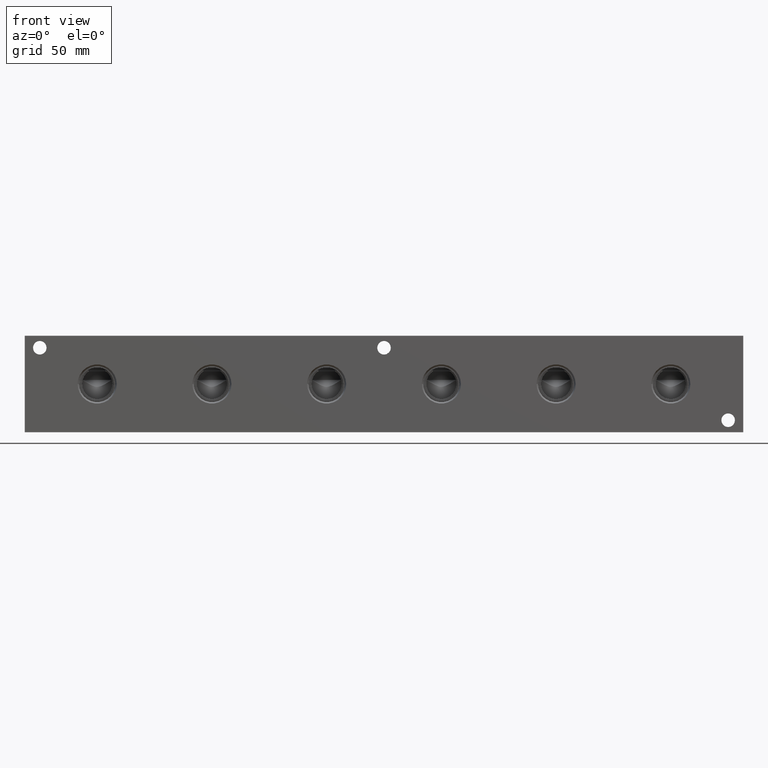
[diagram: clean part render]
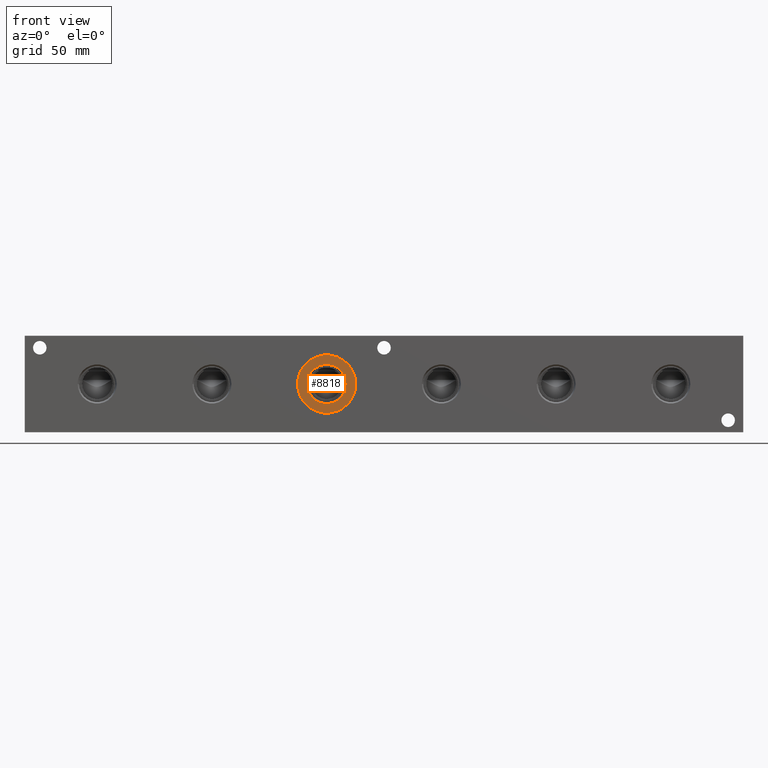
[diagram: same view with one face highlighted and labeled with its STEP entity id]
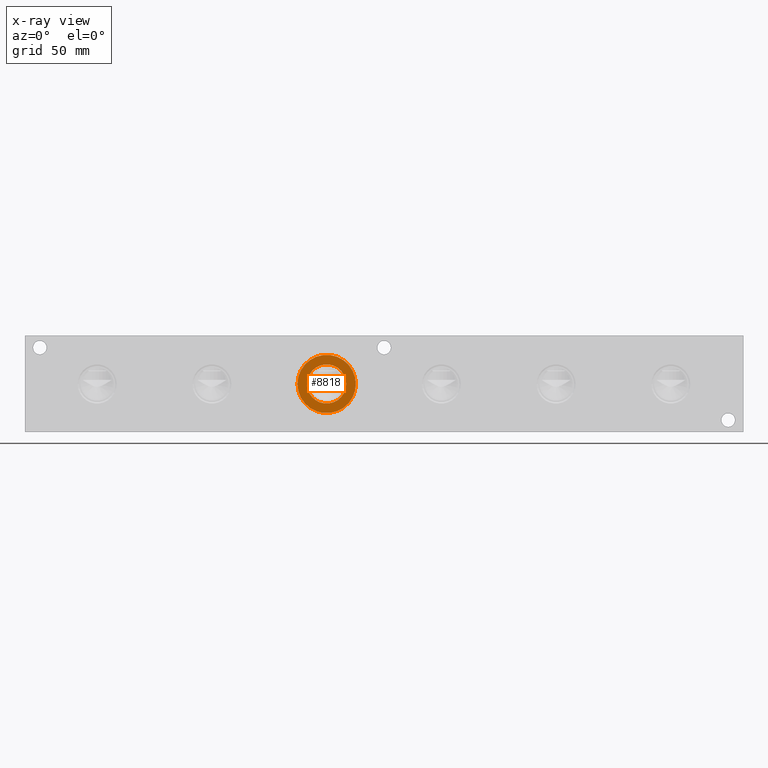
[diagram: x-ray of the same camera — body ghosted, the highlighted face saturated]
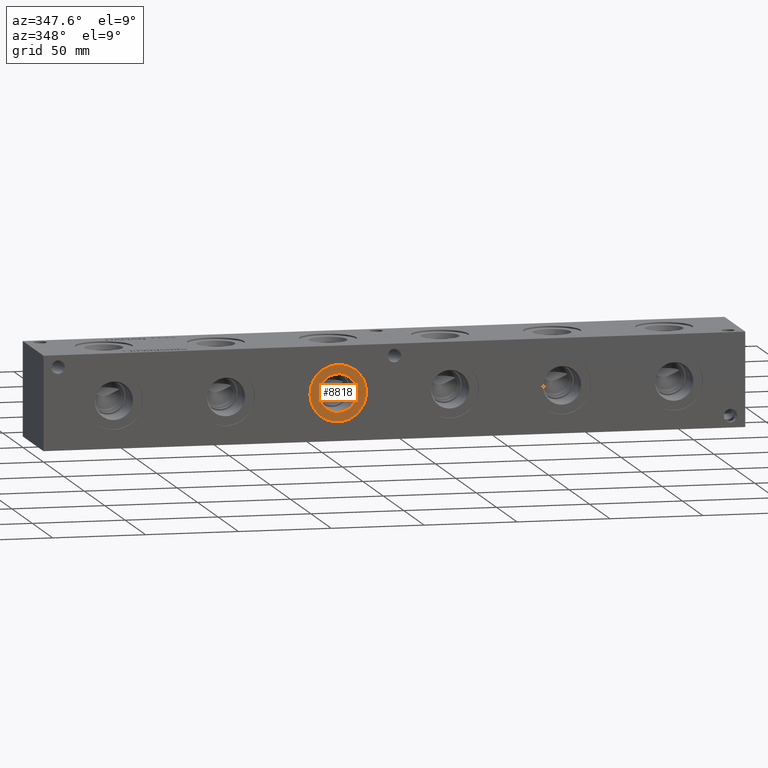
[diagram: same view with one face highlighted and labeled with its STEP entity id]
A machine part, front view. The second image highlights one B-rep face of the part: STEP entity #8818.
The next image is the same camera in x-ray: the body ghosted, the highlighted face saturated — about 0% of this face is hidden behind the body in this view.
A second angle (auxiliary view) of the same face is appended — the face is thin or edge-on in the first view.
In plain terms, the highlighted planar face has unit normal (0, 1, 0).
Its self-contained STEP definition (entity closure, byte-faithful):
#217=CIRCLE('',#9223,15.3162);
#218=CIRCLE('',#9224,15.3162);
#219=CIRCLE('',#9226,10.2997);
#220=CIRCLE('',#9227,10.2997);
#440=FACE_BOUND('',#1547,.T.);
#667=PLANE('',#9225);
#1032=FACE_OUTER_BOUND('',#1546,.T.);
#1546=EDGE_LOOP('',(#7372,#7373));
#1547=EDGE_LOOP('',(#7374,#7375));
#4057=VERTEX_POINT('',#15145);
#4058=VERTEX_POINT('',#15147);
#4059=VERTEX_POINT('',#15151);
#4060=VERTEX_POINT('',#15152);
#5200=EDGE_CURVE('',#4057,#4058,#217,.T.);
#5201=EDGE_CURVE('',#4058,#4057,#218,.T.);
#5202=EDGE_CURVE('',#4059,#4060,#219,.T.);
#5203=EDGE_CURVE('',#4060,#4059,#220,.T.);
#7372=ORIENTED_EDGE('',*,*,#5201,.F.);
#7373=ORIENTED_EDGE('',*,*,#5200,.F.);
#7374=ORIENTED_EDGE('',*,*,#5202,.T.);
#7375=ORIENTED_EDGE('',*,*,#5203,.T.);
#8818=ADVANCED_FACE('',(#1032,#440),#667,.F.);
#9223=AXIS2_PLACEMENT_3D('',#15148,#10709,#10710);
#9224=AXIS2_PLACEMENT_3D('',#15149,#10711,#10712);
#9225=AXIS2_PLACEMENT_3D('',#15150,#10713,#10714);
#9226=AXIS2_PLACEMENT_3D('',#15153,#10715,#10716);
#9227=AXIS2_PLACEMENT_3D('',#15154,#10717,#10718);
#10709=DIRECTION('center_axis',(0.,1.,0.));
#10710=DIRECTION('ref_axis',(1.,0.,0.));
#10711=DIRECTION('center_axis',(0.,1.,0.));
#10712=DIRECTION('ref_axis',(1.,0.,0.));
#10713=DIRECTION('center_axis',(0.,1.,0.));
#10714=DIRECTION('ref_axis',(0.,0.,1.));
#10715=DIRECTION('center_axis',(0.,1.,0.));
#10716=DIRECTION('ref_axis',(1.,0.,0.));
#10717=DIRECTION('center_axis',(0.,1.,0.));
#10718=DIRECTION('ref_axis',(1.,0.,0.));
#15145=CARTESIAN_POINT('',(143.4338,0.7874,25.4));
#15147=CARTESIAN_POINT('',(174.0662,0.7874,25.4));
#15148=CARTESIAN_POINT('Origin',(158.75,0.7874,25.4));
#15149=CARTESIAN_POINT('Origin',(158.75,0.7874,25.4));
#15150=CARTESIAN_POINT('Origin',(169.0497,0.7874,25.4));
#15151=CARTESIAN_POINT('',(169.0497,0.7874,25.4));
#15152=CARTESIAN_POINT('',(148.4503,0.787399999999999,25.4));
#15153=CARTESIAN_POINT('Origin',(158.75,0.7874,25.4));
#15154=CARTESIAN_POINT('Origin',(158.75,0.7874,25.4));